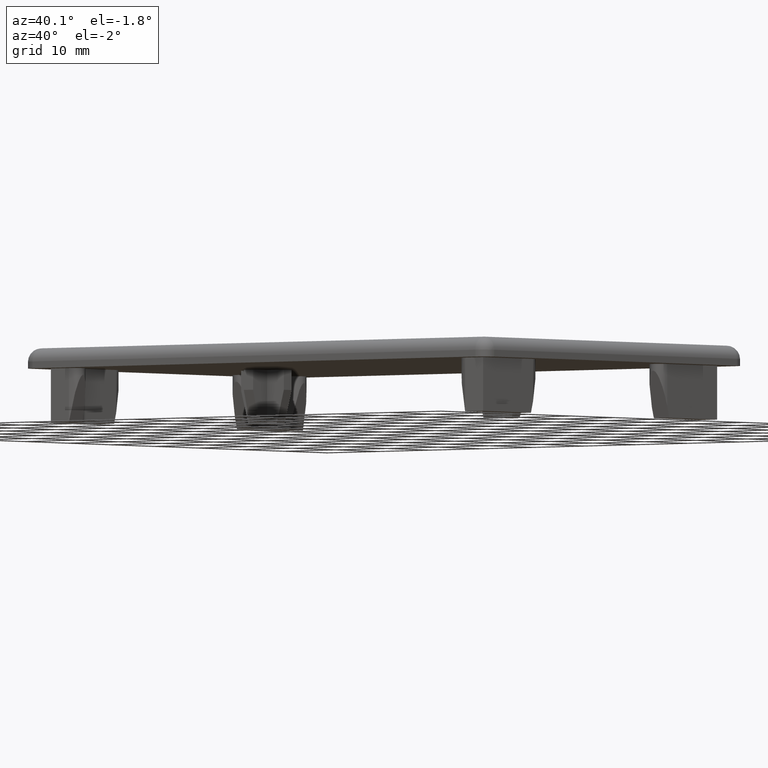
[diagram: clean part render]
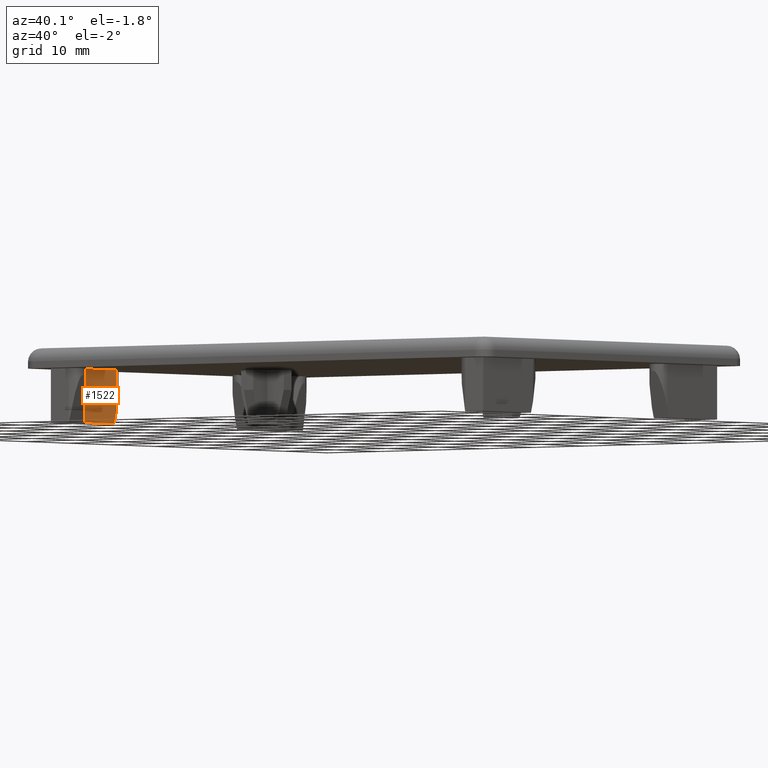
[diagram: same view with one face highlighted and labeled with its STEP entity id]
A machine part, auxiliary view. The second image highlights one B-rep face of the part: STEP entity #1522.
In plain terms, the highlighted planar face has unit normal (1, 0, 0).
Its self-contained STEP definition (entity closure, byte-faithful):
#88=FACE_OUTER_BOUND('',#176,.T.);
#176=EDGE_LOOP('',(#1046,#1047,#1048,#1049,#1050));
#272=LINE('',#2187,#452);
#304=LINE('',#2266,#484);
#308=LINE('',#2276,#488);
#309=LINE('',#2278,#489);
#310=LINE('',#2279,#490);
#452=VECTOR('',#1740,1.70604208384116);
#484=VECTOR('',#1800,6.71157287525378);
#488=VECTOR('',#1808,6.35714285714276);
#489=VECTOR('',#1809,7.17157287525382);
#490=VECTOR('',#1810,8.);
#633=VERTEX_POINT('',#2184);
#634=VERTEX_POINT('',#2186);
#667=VERTEX_POINT('',#2265);
#671=VERTEX_POINT('',#2275);
#672=VERTEX_POINT('',#2277);
#777=EDGE_CURVE('',#634,#633,#272,.T.);
#813=EDGE_CURVE('',#634,#667,#304,.T.);
#818=EDGE_CURVE('',#671,#633,#308,.T.);
#819=EDGE_CURVE('',#672,#671,#309,.T.);
#820=EDGE_CURVE('',#672,#667,#310,.T.);
#1046=ORIENTED_EDGE('',*,*,#777,.T.);
#1047=ORIENTED_EDGE('',*,*,#818,.F.);
#1048=ORIENTED_EDGE('',*,*,#819,.F.);
#1049=ORIENTED_EDGE('',*,*,#820,.T.);
#1050=ORIENTED_EDGE('',*,*,#813,.F.);
#1457=PLANE('',#1618);
#1522=ADVANCED_FACE('',(#88),#1457,.T.);
#1618=AXIS2_PLACEMENT_3D('',#2274,#1806,#1807);
#1740=DIRECTION('',(0.,0.269629925519974,0.962964019714181));
#1800=DIRECTION('',(0.,-1.,0.));
#1806=DIRECTION('center_axis',(1.,0.,0.));
#1807=DIRECTION('ref_axis',(0.,-1.,0.));
#1808=DIRECTION('',(0.,0.,-1.));
#1809=DIRECTION('',(0.,1.,0.));
#1810=DIRECTION('',(0.,0.,-1.));
#2184=CARTESIAN_POINT('',(-39.,-15.5,-6.35714285714276));
#2186=CARTESIAN_POINT('',(-39.,-15.96,-8.));
#2187=CARTESIAN_POINT('',(-39.,-13.924703264095,-0.731083086053415));
#2265=CARTESIAN_POINT('',(-39.,-22.6715728752538,-8.));
#2266=CARTESIAN_POINT('',(-39.,-15.5,-8.));
#2274=CARTESIAN_POINT('Origin',(-39.,-15.5,0.));
#2275=CARTESIAN_POINT('',(-39.,-15.5,0.));
#2276=CARTESIAN_POINT('',(-39.,-15.5,0.));
#2277=CARTESIAN_POINT('',(-39.,-22.6715728752538,0.));
#2278=CARTESIAN_POINT('',(-39.,-7.75,0.));
#2279=CARTESIAN_POINT('',(-39.,-22.6715728752538,0.));